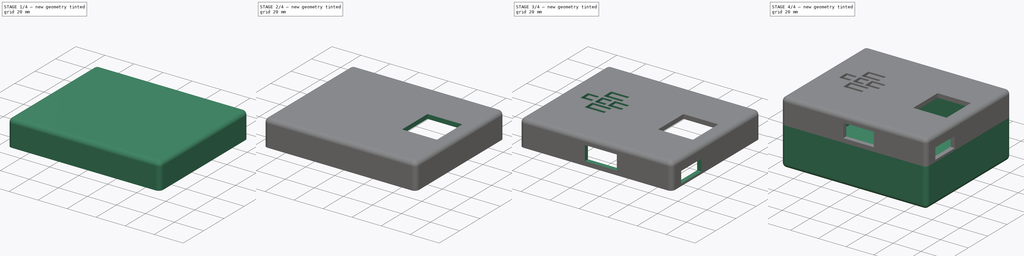
[diagram: build sequence overview — one tinted view per stage of 4, left to right]
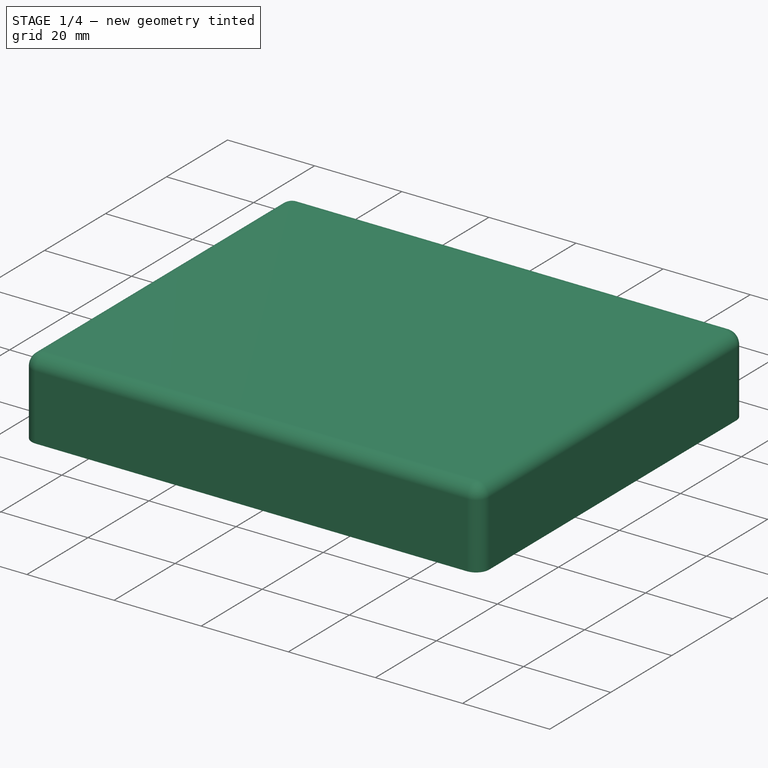
[diagram: stage 1 of 4 — iso view after this stage's code; geometry added in this stage tinted green]
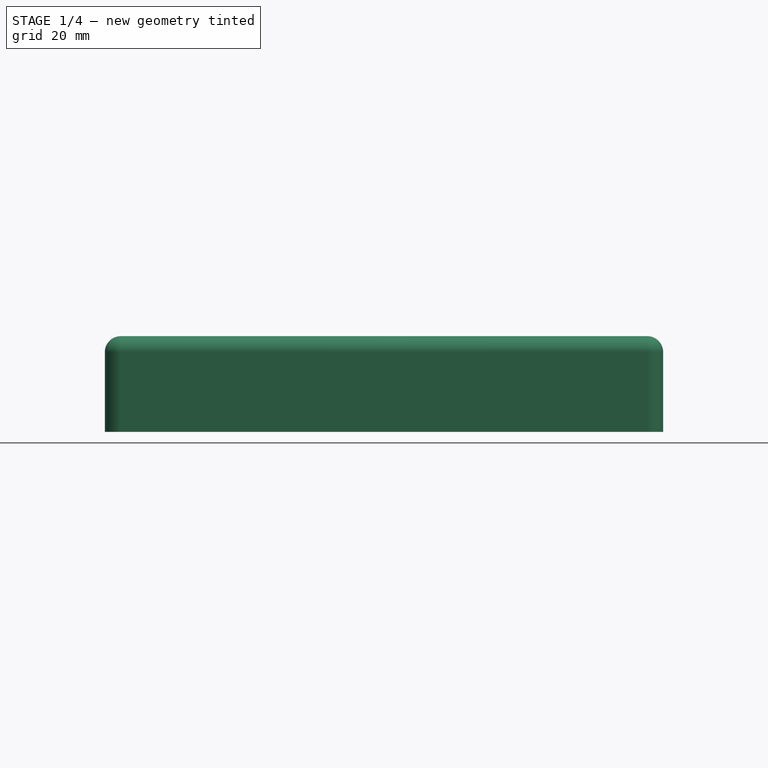
[diagram: stage 1 of 4 — front view after this stage's code; geometry added in this stage tinted green]
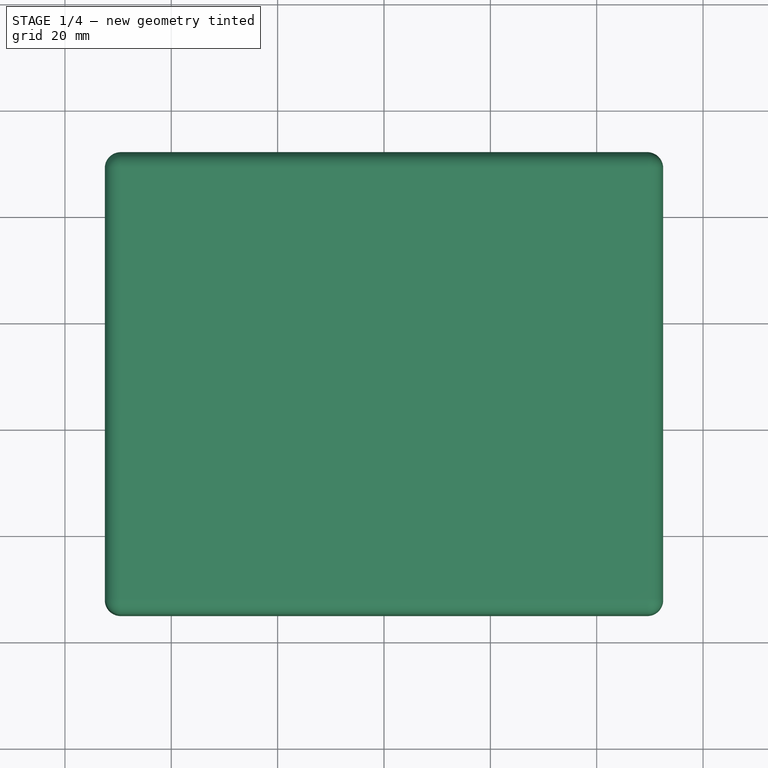
[diagram: stage 1 of 4 — top view after this stage's code; geometry added in this stage tinted green]
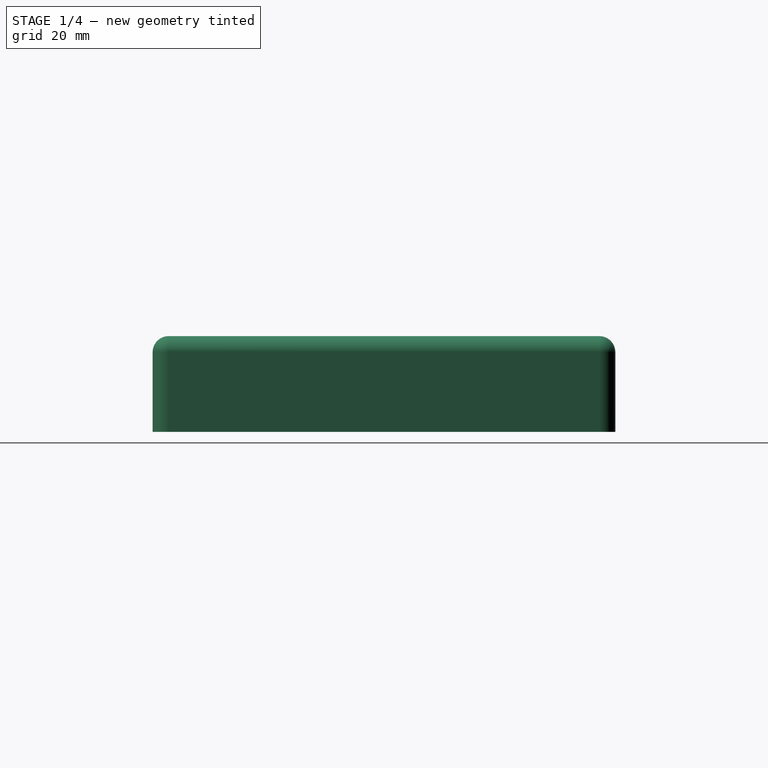
[diagram: stage 1 of 4 — right view after this stage's code; geometry added in this stage tinted green]
FCSTD DOCUMENT  (FreeCAD 1.0R39109 (Git))
Label: Casing_3DPrint
License: All rights reserved
LicenseURL: https://en.wikipedia.org/wiki/All_rights_reserved
objects: Sketcher::SketchObject×11, PartDesign::Pocket×8, PartDesign::Pad×3, PartDesign::Thickness×2, PartDesign::Body×2, Part::Feature×1
note: 64 computed .brp shape members not serialized (recipe doc carries the construction recipe); baked Part::Feature solids carry a one-line shape summary decoded from their .brp

FEATURE [Sketcher::SketchObject] Sketch001
  ArcFitTolerance = 1e-06
  ExternalGeometry = -> [Part__Feature017]
  FullyConstrained = true
  MakeInternals = false
  Placement = pos=(0,0,25) rot=(0,0,1;0rad)
  sketch-geometry (4):
    g0: LineSegment StartX=-29.5 StartY=-51 StartZ=0 EndX=-29.5 EndY=-132 EndZ=0
    g1: LineSegment StartX=-29.5 StartY=-132 StartZ=0 EndX=69.5 EndY=-132 EndZ=0
    g2: LineSegment StartX=69.5 StartY=-132 StartZ=0 EndX=69.5 EndY=-51 EndZ=0
    g3: LineSegment StartX=69.5 StartY=-51 StartZ=0 EndX=-29.5 EndY=-51 EndZ=0
  constraints (12):
    c: Coincident(g0,g1)
    c: Coincident(g1,g2)
    c: Coincident(g2,g3)
    c: Coincident(g3,g0)
    c: Vertical(g0)
    c: Vertical(g2)
    c: Horizontal(g1)
    c: Horizontal(g3)
    c: DistanceX(g-4,g1) = 3
    c: DistanceY(g1,g-4) = 3
    c: DistanceX(g0,g-4) = 3
    c: DistanceY(g-3,g2) = 3
FEATURE [PartDesign::Pad] Pad001
  Direction = (0,0,1)
  Length = 15
  Length2 = 10
  Placement = pos=(0,0,25) rot=(0,0,1;0rad)
  Profile = -> Sketch001
  ReferenceAxis = -> Sketch001 [N_Axis]
  Refine = true
  Suppressed = false
  Type = 0
FEATURE [PartDesign::Thickness] Thickness001
  Base = -> Pad001 [Face5]
  BaseFeature = -> Pad001
  Intersection = false
  Join = 0
  Mode = 0
  Refine = true
  SupportTransform = false
  Suppressed = false
  Value = 3
FEATURE [PartDesign::Body] Body
  AllowCompound = false
  Group = -> [Sketch,Pad,Thickness,Sketch004,Pocket]
  Origin = -> Origin
  Tip = -> Pocket
FEATURE [PartDesign::Pocket] Pocket001
  BaseFeature = -> Thickness001
  Direction = (0,0,-1)
  Length = 5
  Length2 = 5
  Profile = -> Sketch003
  ReferenceAxis = -> Sketch003 [N_Axis]
  Refine = true
  Suppressed = false
  Type = 1
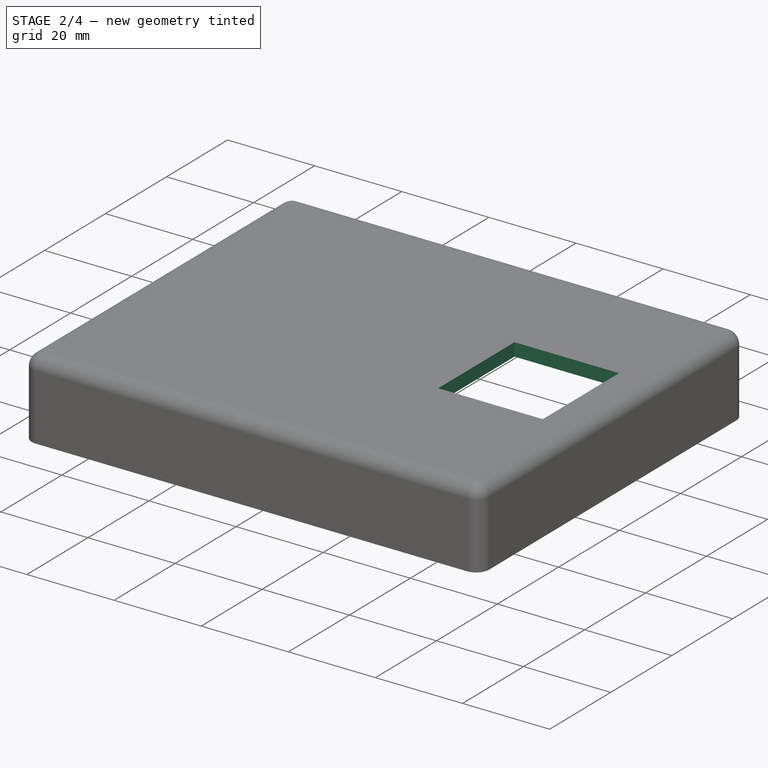
[diagram: stage 2 of 4 — iso view after this stage's code; geometry added in this stage tinted green]
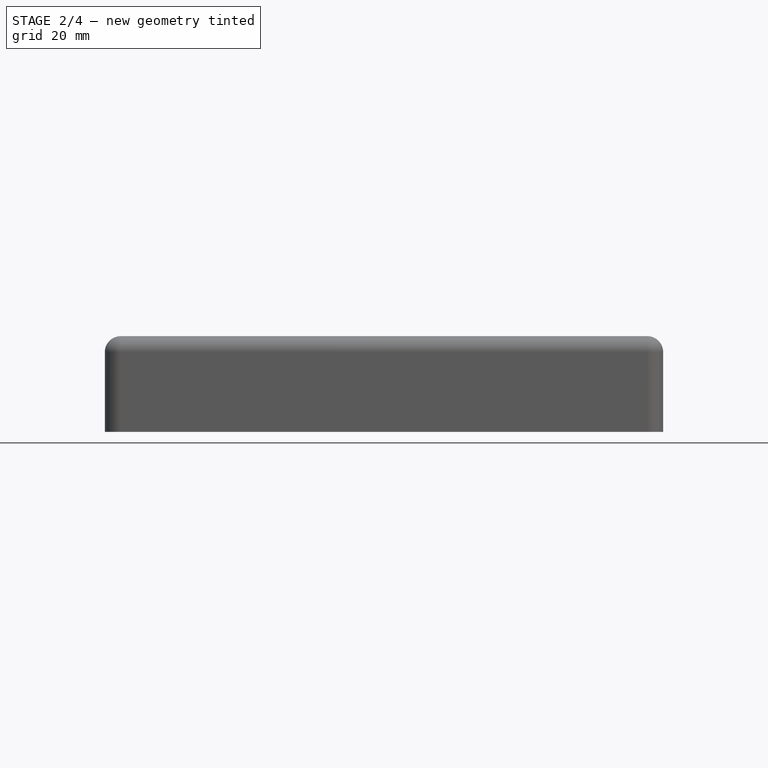
[diagram: stage 2 of 4 — front view after this stage's code; geometry added in this stage tinted green]
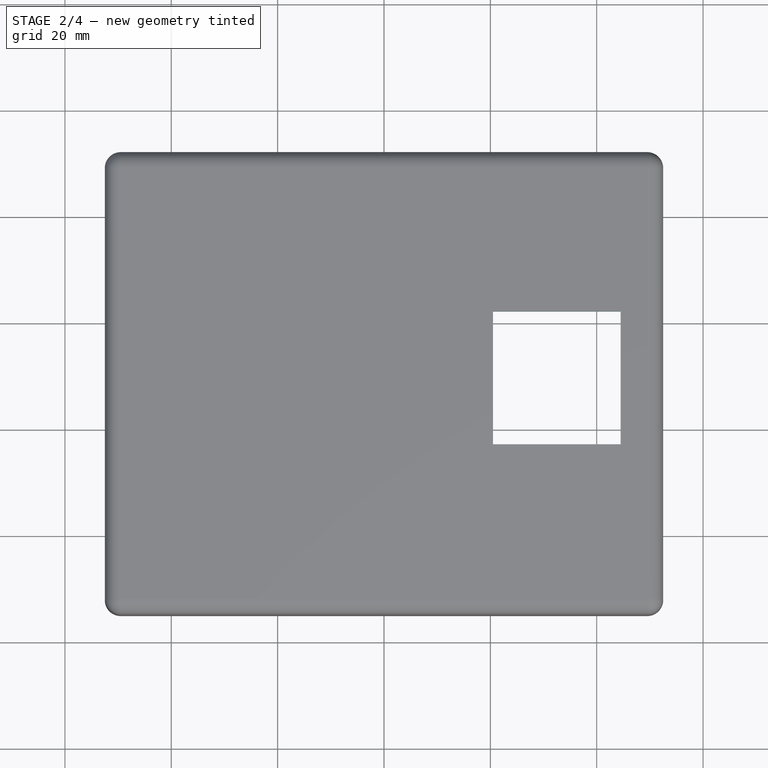
[diagram: stage 2 of 4 — top view after this stage's code; geometry added in this stage tinted green]
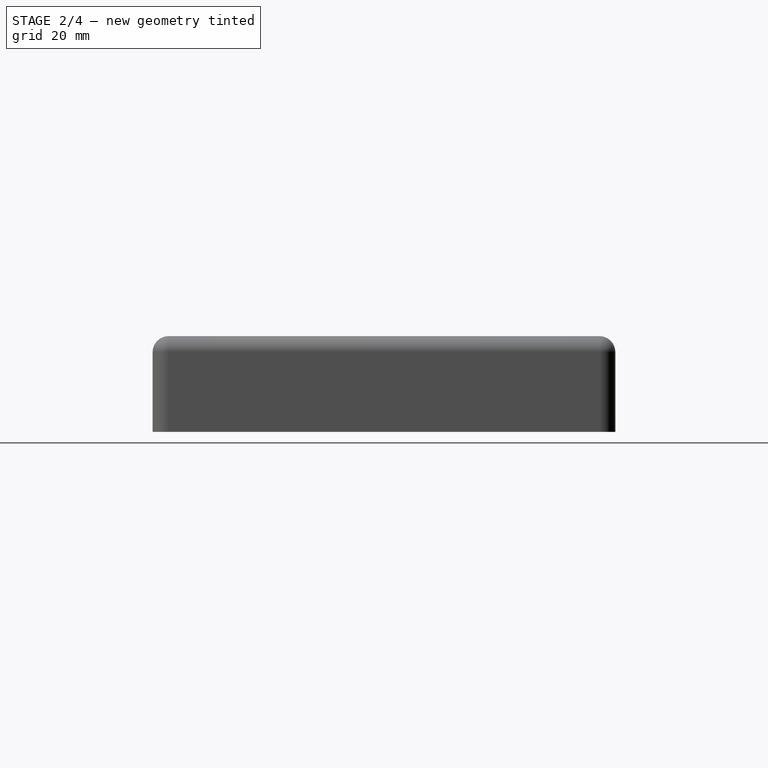
[diagram: stage 2 of 4 — right view after this stage's code; geometry added in this stage tinted green]
FEATURE [Sketcher::SketchObject] Sketch005
  ArcFitTolerance = 1e-06
  AttachmentSupport = -> [Pocket001]
  ExternalGeometry = -> [Pocket001]
  FullyConstrained = true
  MakeInternals = false
  MapMode = 5
  Placement = pos=(0,0,43) rot=(0,0,1;0rad)
  sketch-geometry (4):
    g0: LineSegment StartX=40.5 StartY=-78 StartZ=0 EndX=40.5 EndY=-103 EndZ=0
    g1: LineSegment StartX=40.5 StartY=-103 StartZ=0 EndX=64.5 EndY=-103 EndZ=0
    g2: LineSegment StartX=64.5 StartY=-103 StartZ=0 EndX=64.5 EndY=-78 EndZ=0
    g3: LineSegment StartX=64.5 StartY=-78 StartZ=0 EndX=40.5 EndY=-78 EndZ=0
  constraints (12):
    c: Coincident(g0,g1)
    c: Coincident(g1,g2)
    c: Coincident(g2,g3)
    c: Coincident(g3,g0)
    c: Vertical(g0)
    c: Vertical(g2)
    c: Horizontal(g1)
    c: Horizontal(g3)
    c: DistanceY(g2,g-3) = 27
    c: DistanceY(g1,g2) = 25
    c: DistanceX(g2,g-3) = 5
    c: DistanceX(g0,g2) = 24
FEATURE [PartDesign::Pocket] Pocket002
  BaseFeature = -> Pocket001
  Direction = (0,0,-1)
  Length = 5
  Length2 = 5
  Profile = -> Sketch005
  ReferenceAxis = -> Sketch005 [N_Axis]
  Refine = true
  Suppressed = false
  Type = 1
FEATURE [Sketcher::SketchObject] Sketch006
  ArcFitTolerance = 1e-06
  AttachmentSupport = -> [Pocket002]
  ExternalGeometry = -> [Pocket002]
  FullyConstrained = true
  MakeInternals = false
  MapMode = 5
  Placement = pos=(-32.5,0,0) rot=(0.57735,-0.57735,-0.57735;2.0944rad)
  sketch-geometry (4):
    g0: LineSegment StartX=90 StartY=34 StartZ=0 EndX=90 EndY=26 EndZ=0
    g1: LineSegment StartX=90 StartY=26 StartZ=0 EndX=105 EndY=26 EndZ=0
    g2: LineSegment StartX=105 StartY=26 StartZ=0 EndX=105 EndY=34 EndZ=0
    g3: LineSegment StartX=105 StartY=34 StartZ=0 EndX=90 EndY=34 EndZ=0
  constraints (13):
    c: Coincident(g0,g1)
    c: Coincident(g1,g2)
    c: Coincident(g2,g3)
    c: Coincident(g3,g0)
    c: Vertical(g0)
    c: Vertical(g2)
    c: Horizontal(g1)
    c: Horizontal(g3)
    c: DistanceX(g2,g-3) = 27
    c: DistanceX(g3,g3) = 15
    c: DistanceY(g-3,g-3) = 0
    c: DistanceY(g2,g-3) = 6
    c: DistanceY(g2,g2) = 8
FEATURE [PartDesign::Pocket] Pocket003
  BaseFeature = -> Pocket002
  Direction = (1,0,0)
  Length = 5
  Length2 = 5
  Profile = -> Sketch006
  ReferenceAxis = -> Sketch006 [N_Axis]
  Refine = true
  Suppressed = false
  Type = 2
FEATURE [Sketcher::SketchObject] Sketch007
  ArcFitTolerance = 1e-06
  AttachmentSupport = -> [Pocket003]
  ExternalGeometry = -> [Pocket003]
  FullyConstrained = true
  MakeInternals = false
  MapMode = 5
  Placement = pos=(0,-48,0) rot=(0,0.707107,0.707107;3.14159rad)
  sketch-geometry (4):
    g0: LineSegment StartX=-2.5 StartY=33 StartZ=0 EndX=-2.5 EndY=26.5 EndZ=0
    g1: LineSegment StartX=-2.5 StartY=26.5 StartZ=0 EndX=14.5 EndY=26.5 EndZ=0
    g2: LineSegment StartX=14.5 StartY=26.5 StartZ=0 EndX=14.5 EndY=33 EndZ=0
    g3: LineSegment StartX=14.5 StartY=33 StartZ=0 EndX=-2.5 EndY=33 EndZ=0
  constraints (12):
    c: Coincident(g0,g1)
    c: Coincident(g1,g2)
    c: Coincident(g2,g3)
    c: Coincident(g3,g0)
    c: Vertical(g0)
    c: Vertical(g2)
    c: Horizontal(g1)
    c: Horizontal(g3)
    c: DistanceY(g2,g-3) = 7
    c: DistanceY(g2,g2) = 6.5
    c: DistanceX(g0,g2) = 17
    c: DistanceX(g2,g-3) = 15
FEATURE [PartDesign::Pocket] Pocket004
  BaseFeature = -> Pocket003
  Direction = (0,-1,2e-16)
  Length = 5
  Length2 = 5
  Profile = -> Sketch007
  ReferenceAxis = -> Sketch007 [N_Axis]
  Refine = true
  Suppressed = false
  Type = 2
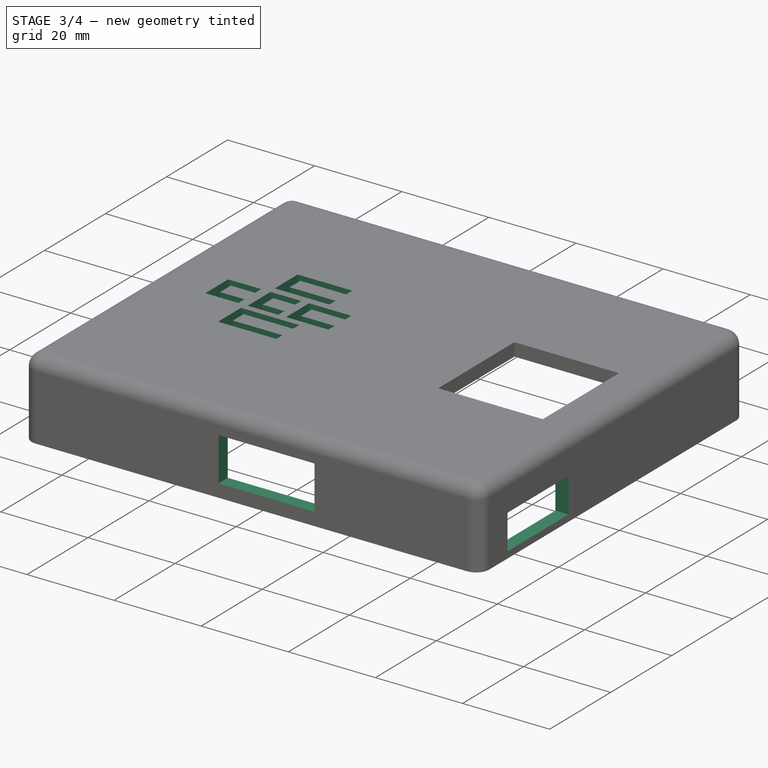
[diagram: stage 3 of 4 — iso view after this stage's code; geometry added in this stage tinted green]
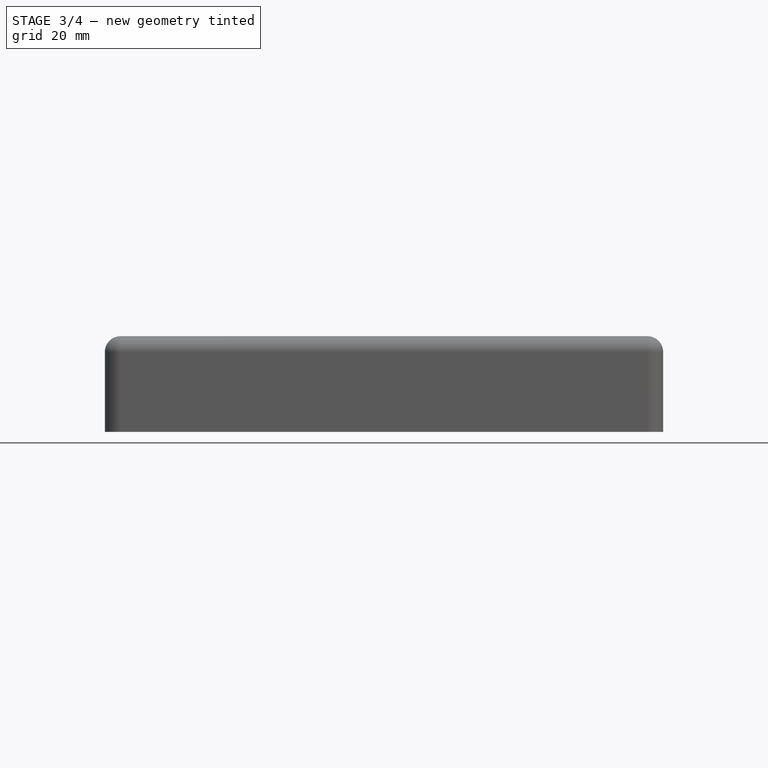
[diagram: stage 3 of 4 — front view after this stage's code; geometry added in this stage tinted green]
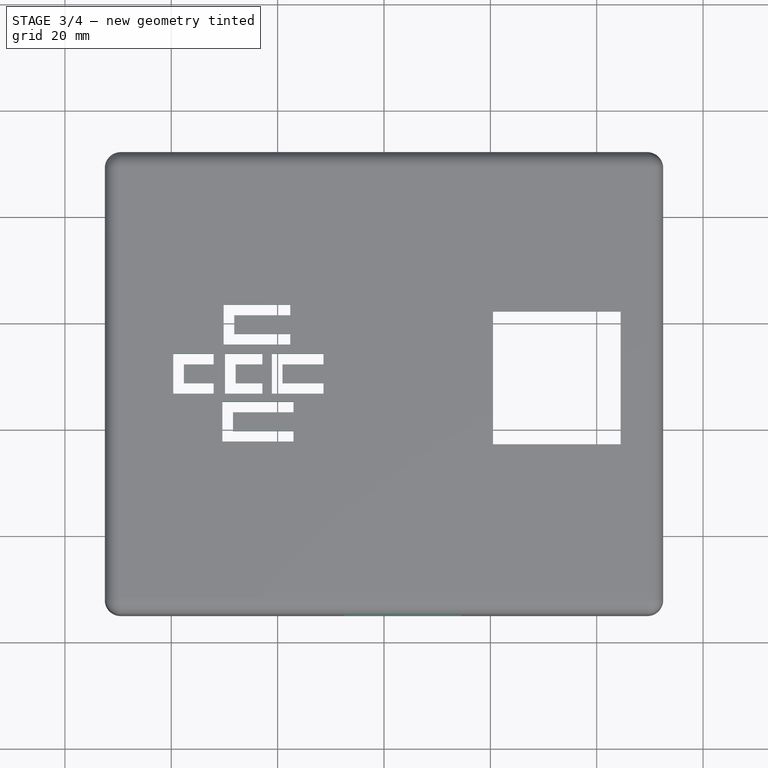
[diagram: stage 3 of 4 — top view after this stage's code; geometry added in this stage tinted green]
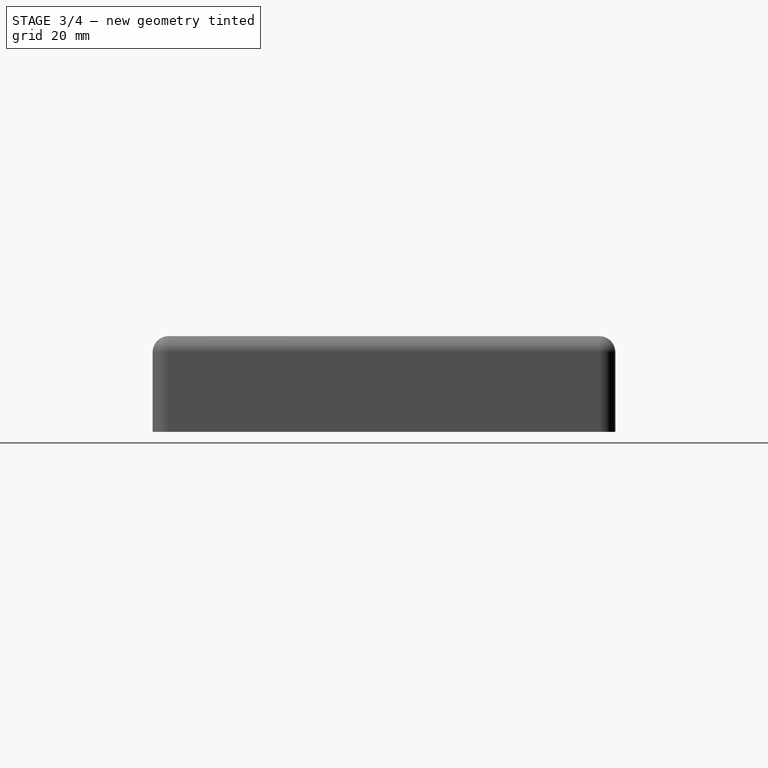
[diagram: stage 3 of 4 — right view after this stage's code; geometry added in this stage tinted green]
FEATURE [Sketcher::SketchObject] Sketch008
  ArcFitTolerance = 1e-06
  AttachmentSupport = -> [Pocket004]
  ExternalGeometry = -> [Pocket004]
  FullyConstrained = true
  MakeInternals = false
  MapMode = 5
  Placement = pos=(72.5,0,0) rot=(0.57735,0.57735,0.57735;2.0944rad)
  sketch-geometry (4):
    g0: LineSegment StartX=-126 StartY=34.5 StartZ=0 EndX=-126 EndY=26.5 EndZ=0
    g1: LineSegment StartX=-126 StartY=26.5 StartZ=0 EndX=-106 EndY=26.5 EndZ=0
    g2: LineSegment StartX=-106 StartY=26.5 StartZ=0 EndX=-106 EndY=34.5 EndZ=0
    g3: LineSegment StartX=-106 StartY=34.5 StartZ=0 EndX=-126 EndY=34.5 EndZ=0
  constraints (12):
    c: Coincident(g0,g1)
    c: Coincident(g1,g2)
    c: Coincident(g2,g3)
    c: Coincident(g3,g0)
    c: Vertical(g0)
    c: Vertical(g2)
    c: Horizontal(g1)
    c: Horizontal(g3)
    c: DistanceY(g0,g-3) = 5.5
    c: DistanceY(g0,g0) = 8
    c: DistanceX(g3,g3) = 20
    c: DistanceX(g-3,g0) = 6
FEATURE [PartDesign::Pocket] Pocket005
  BaseFeature = -> Pocket004
  Direction = (-1,0,0)
  Length = 5
  Length2 = 5
  Profile = -> Sketch008
  ReferenceAxis = -> Sketch008 [N_Axis]
  Refine = true
  Suppressed = false
  Type = 2
FEATURE [Sketcher::SketchObject] Sketch009
  ArcFitTolerance = 1e-06
  AttachmentSupport = -> [Pocket005]
  ExternalGeometry = -> [Pocket005]
  FullyConstrained = true
  MakeInternals = false
  MapMode = 5
  Placement = pos=(0,-135,0) rot=(1,0,0;1.5708rad)
  sketch-geometry (4):
    g0: LineSegment StartX=12.5 StartY=38 StartZ=0 EndX=12.5 EndY=28 EndZ=0
    g1: LineSegment StartX=12.5 StartY=28 StartZ=0 EndX=34.5 EndY=28 EndZ=0
    g2: LineSegment StartX=34.5 StartY=28 StartZ=0 EndX=34.5 EndY=38 EndZ=0
    g3: LineSegment StartX=34.5 StartY=38 StartZ=0 EndX=12.5 EndY=38 EndZ=0
  constraints (12):
    c: Coincident(g0,g1)
    c: Coincident(g1,g2)
    c: Coincident(g2,g3)
    c: Coincident(g3,g0)
    c: Vertical(g0)
    c: Vertical(g2)
    c: Horizontal(g1)
    c: Horizontal(g3)
    c: DistanceY(g2,g-3) = 2
    c: DistanceY(g2,g2) = 10
    c: DistanceX(g1,g1) = 22
    c: DistanceX(g2,g-3) = 35
FEATURE [PartDesign::Pocket] Pocket006
  BaseFeature = -> Pocket005
  Direction = (0,1,-2e-16)
  Length = 5
  Length2 = 5
  Profile = -> Sketch009
  ReferenceAxis = -> Sketch009 [N_Axis]
  Refine = true
  Suppressed = false
  Type = 2
FEATURE [Sketcher::SketchObject] Sketch010
  ArcFitTolerance = 1e-06
  AttachmentSupport = -> [Pocket006]
  FullyConstrained = false
  MakeInternals = false
  MapMode = 5
  Placement = pos=(0,0,43) rot=(0,0,1;0rad)
  sketch-geometry (60):
    g0: LineSegment StartX=-8.15269 StartY=-78.7188 StartZ=0 EndX=-10.1527 EndY=-78.7188 EndZ=0
    g1: LineSegment StartX=-10.1527 StartY=-78.7188 StartZ=0 EndX=-10.1527 EndY=-82.2188 EndZ=0
    g2: LineSegment StartX=-10.1527 StartY=-82.2188 StartZ=0 EndX=-8.15269 EndY=-82.2188 EndZ=0
    g3: LineSegment StartX=-8.15269 StartY=-82.2188 StartZ=0 EndX=-8.15269 EndY=-78.7188 EndZ=0
    g4: LineSegment StartX=2.37578 StartY=-76.7188 StartZ=0 EndX=-10.1527 EndY=-76.7188 EndZ=0
    g5: LineSegment StartX=-10.1527 StartY=-76.7188 StartZ=0 EndX=-10.1527 EndY=-78.7188 EndZ=0
    g6: LineSegment StartX=-10.1527 StartY=-78.7188 StartZ=0 EndX=2.37578 EndY=-78.7188 EndZ=0
    g7: LineSegment StartX=2.37578 StartY=-78.7188 StartZ=0 EndX=2.37578 EndY=-76.7188 EndZ=0
    g8: LineSegment StartX=2.37578 StartY=-82.2188 StartZ=0 EndX=-10.1527 EndY=-82.2188 EndZ=0
    g9: LineSegment StartX=-10.1527 StartY=-82.2188 StartZ=0 EndX=-10.1527 EndY=-84.2188 EndZ=0
    g10: LineSegment StartX=-10.1527 StartY=-84.2188 StartZ=0 EndX=2.37578 EndY=-84.2188 EndZ=0
    g11: LineSegment StartX=2.37578 StartY=-84.2188 StartZ=0 EndX=2.37578 EndY=-82.2188 EndZ=0
    g12: LineSegment StartX=0.912655 StartY=-87.9723 StartZ=0 EndX=-1.08735 EndY=-87.9723 EndZ=0
    g13: LineSegment StartX=-1.08735 StartY=-87.9723 StartZ=0 EndX=-1.08735 EndY=-91.4723 EndZ=0
    g14: LineSegment StartX=-1.08735 StartY=-91.4723 StartZ=0 EndX=0.912655 EndY=-91.4723 EndZ=0
    g15: LineSegment StartX=0.912655 StartY=-91.4723 StartZ=0 EndX=0.912655 EndY=-87.9723 EndZ=0
    g16: LineSegment StartX=8.6177 StartY=-85.9723 StartZ=0 EndX=-1.08735 EndY=-85.9723 EndZ=0
    g17: LineSegment StartX=-1.08735 StartY=-85.9723 StartZ=0 EndX=-1.08735 EndY=-87.9723 EndZ=0
    g18: LineSegment StartX=-1.08735 StartY=-87.9723 StartZ=0 EndX=8.6177 EndY=-87.9723 EndZ=0
    g19: LineSegment StartX=8.6177 StartY=-87.9723 StartZ=0 EndX=8.6177 EndY=-85.9723 EndZ=0
    g20: LineSegment StartX=8.6177 StartY=-91.4723 StartZ=0 EndX=-1.08735 EndY=-91.4723 EndZ=0
    g21: LineSegment StartX=-1.08735 StartY=-91.4723 StartZ=0 EndX=-1.08735 EndY=-93.4723 EndZ=0
    g22: LineSegment StartX=-1.08735 StartY=-93.4723 StartZ=0 EndX=8.6177 EndY=-93.4723 EndZ=0
    g23: LineSegment StartX=8.6177 StartY=-93.4723 StartZ=0 EndX=8.6177 EndY=-91.4723 EndZ=0
    g24: LineSegment StartX=-7.90049 StartY=-87.9723 StartZ=0 EndX=-9.90049 EndY=-87.9723 EndZ=0
    g25: LineSegment StartX=-9.90049 StartY=-87.9723 StartZ=0 EndX=-9.90049 EndY=-91.4723 EndZ=0
    g26: LineSegment StartX=-9.90049 StartY=-91.4723 StartZ=0 EndX=-7.90049 EndY=-91.4723 EndZ=0
    g27: LineSegment StartX=-7.90049 StartY=-91.4723 StartZ=0 EndX=-7.90049 EndY=-87.9723 EndZ=0
    g28: LineSegment StartX=-2.88131 StartY=-85.9723 StartZ=0 EndX=-9.90049 EndY=-85.9723 EndZ=0
    g29: LineSegment StartX=-9.90049 StartY=-85.9723 StartZ=0 EndX=-9.90049 EndY=-87.9723 EndZ=0
    g30: LineSegment StartX=-9.90049 StartY=-87.9723 StartZ=0 EndX=-2.88131 EndY=-87.9723 EndZ=0
    g31: LineSegment StartX=-2.88131 StartY=-87.9723 StartZ=0 EndX=-2.88131 EndY=-85.9723 EndZ=0
    g32: LineSegment StartX=-2.88131 StartY=-91.4723 StartZ=0 EndX=-9.90049 EndY=-91.4723 EndZ=0
    g33: LineSegment StartX=-9.90049 StartY=-91.4723 StartZ=0 EndX=-9.90049 EndY=-93.4723 EndZ=0
    g34: LineSegment StartX=-9.90049 StartY=-93.4723 StartZ=0 EndX=-2.88131 EndY=-93.4723 EndZ=0
    g35: LineSegment StartX=-2.88131 StartY=-93.4723 StartZ=0 EndX=-2.88131 EndY=-91.4723 EndZ=0
    g36: LineSegment StartX=-8.39221 StartY=-96.9807 StartZ=0 EndX=-10.3922 EndY=-96.9807 EndZ=0
    g37: LineSegment StartX=-10.3922 StartY=-96.9807 StartZ=0 EndX=-10.3922 EndY=-100.481 EndZ=0
    g38: LineSegment StartX=-10.3922 StartY=-100.481 StartZ=0 EndX=-8.39221 EndY=-100.481 EndZ=0
    g39: LineSegment StartX=-8.39221 StartY=-100.481 StartZ=0 EndX=-8.39221 EndY=-96.9807 EndZ=0
    g40: LineSegment StartX=2.97212 StartY=-94.9807 StartZ=0 EndX=-10.3922 EndY=-94.9807 EndZ=0
    g41: LineSegment StartX=-10.3922 StartY=-94.9807 StartZ=0 EndX=-10.3922 EndY=-96.9807 EndZ=0
    g42: LineSegment StartX=-10.3922 StartY=-96.9807 StartZ=0 EndX=2.97212 EndY=-96.9807 EndZ=0
    g43: LineSegment StartX=2.97212 StartY=-96.9807 StartZ=0 EndX=2.97212 EndY=-94.9807 EndZ=0
    g44: LineSegment StartX=2.97212 StartY=-100.481 StartZ=0 EndX=-10.3922 EndY=-100.481 EndZ=0
    g45: LineSegment StartX=-10.3922 StartY=-100.481 StartZ=0 EndX=-10.3922 EndY=-102.481 EndZ=0
    g46: LineSegment StartX=-10.3922 StartY=-102.481 StartZ=0 EndX=2.97212 EndY=-102.481 EndZ=0
    g47: LineSegment StartX=2.97212 StartY=-102.481 StartZ=0 EndX=2.97212 EndY=-100.481 EndZ=0
    g48: LineSegment StartX=-17.6266 StartY=-87.9723 StartZ=0 EndX=-19.6266 EndY=-87.9723 EndZ=0
    g49: LineSegment StartX=-19.6266 StartY=-87.9723 StartZ=0 EndX=-19.6266 EndY=-91.4723 EndZ=0
    g50: LineSegment StartX=-19.6266 StartY=-91.4723 StartZ=0 EndX=-17.6266 EndY=-91.4723 EndZ=0
    g51: LineSegment StartX=-17.6266 StartY=-91.4723 StartZ=0 EndX=-17.6266 EndY=-87.9723 EndZ=0
    g52: LineSegment StartX=-12.0456 StartY=-85.9723 StartZ=0 EndX=-19.6266 EndY=-85.9723 EndZ=0
    g53: LineSegment StartX=-19.6266 StartY=-85.9723 StartZ=0 EndX=-19.6266 EndY=-87.9723 EndZ=0
    g54: LineSegment StartX=-19.6266 StartY=-87.9723 StartZ=0 EndX=-12.0456 EndY=-87.9723 EndZ=0
    g55: LineSegment StartX=-12.0456 StartY=-87.9723 StartZ=0 EndX=-12.0456 EndY=-85.9723 EndZ=0
    g56: LineSegment StartX=-12.0456 StartY=-91.4723 StartZ=0 EndX=-19.6266 EndY=-91.4723 EndZ=0
    g57: LineSegment StartX=-19.6266 StartY=-91.4723 StartZ=0 EndX=-19.6266 EndY=-93.4723 EndZ=0
    g58: LineSegment StartX=-19.6266 StartY=-93.4723 StartZ=0 EndX=-12.0456 EndY=-93.4723 EndZ=0
    g59: LineSegment StartX=-12.0456 StartY=-93.4723 StartZ=0 EndX=-12.0456 EndY=-91.4723 EndZ=0
  constraints (157):
    c: Coincident(g0,g1)
    c: Coincident(g1,g2)
    c: Coincident(g2,g3)
    c: Coincident(g3,g0)
    c: Horizontal(g0)
    c: Horizontal(g2)
    c: Vertical(g1)
    c: Vertical(g3)
    c: Coincident(g4,g5)
    c: Coincident(g5,g6)
    c: Coincident(g6,g7)
    c: Coincident(g7,g4)
    c: Horizontal(g4)
    c: Horizontal(g6)
    c: Vertical(g5)
    c: Vertical(g7)
    c: DistanceY(g6,g4) = 2
    c: Coincident(g8,g9)
    c: Coincident(g9,g10)
    c: Coincident(g10,g11)
    c: Coincident(g11,g8)
    c: Horizontal(g8)
    c: Horizontal(g10)
    c: Vertical(g9)
    c: Vertical(g11)
    c: DistanceY(g10,g8) = 2
    c: Coincident(g0,g5)
    c: DistanceX(g2,g2) = 2
    c: Coincident(g8,g1)
    c: PointOnObject(g10,g7)
    c: Distance(g6,g8) = 3.5
    c: Coincident(g12,g13)
    c: Coincident(g13,g14)
    c: Coincident(g14,g15)
    c: Coincident(g15,g12)
    c: Horizontal(g12)
    c: Horizontal(g14)
    c: Vertical(g13)
    c: Vertical(g15)
    c: Coincident(g16,g17)
    c: Coincident(g17,g18)
    c: Coincident(g18,g19)
    c: Coincident(g19,g16)
    c: Horizontal(g16)
    c: Horizontal(g18)
    c: Vertical(g17)
    c: Vertical(g19)
    c: DistanceY(g18,g16) = 2
    c: Coincident(g20,g21)
    c: Coincident(g21,g22)
    c: Coincident(g22,g23)
    c: Coincident(g23,g20)
    c: Horizontal(g20)
    c: Horizontal(g22)
    c: Vertical(g21)
    c: Vertical(g23)
    c: DistanceY(g22,g20) = 2
    c: Coincident(g12,g17)
    c: DistanceX(g14,g14) = 2
    c: Coincident(g20,g13)
    c: PointOnObject(g22,g19)
    c: Distance(g18,g20) = 3.5
    c: Coincident(g24,g25)
    c: Coincident(g25,g26)
    c: Coincident(g26,g27)
    c: Coincident(g27,g24)
    c: Horizontal(g24)
    c: Horizontal(g26)
    c: Vertical(g25)
    c: Vertical(g27)
    c: Coincident(g28,g29)
    c: Coincident(g29,g30)
    c: Coincident(g30,g31)
    c: Coincident(g31,g28)
    c: Horizontal(g28)
    c: Horizontal(g30)
    c: Vertical(g29)
    c: Vertical(g31)
    c: DistanceY(g30,g28) = 2
    c: Coincident(g32,g33)
    c: Coincident(g33,g34)
    c: Coincident(g34,g35)
    c: Coincident(g35,g32)
    c: Horizontal(g32)
    c: Horizontal(g34)
    c: Vertical(g33)
    c: Vertical(g35)
    c: DistanceY(g34,g32) = 2
    c: Coincident(g24,g29)
    c: DistanceX(g26,g26) = 2
    c: Coincident(g32,g25)
    c: PointOnObject(g34,g31)
    c: Distance(g30,g32) = 3.5
    c: Coincident(g36,g37)
    c: Coincident(g37,g38)
    c: Coincident(g38,g39)
    c: Coincident(g39,g36)
    c: Horizontal(g36)
    c: Horizontal(g38)
    c: Vertical(g37)
    c: Vertical(g39)
    c: Coincident(g40,g41)
    c: Coincident(g41,g42)
    c: Coincident(g42,g43)
    c: Coincident(g43,g40)
    c: Horizontal(g40)
    c: Horizontal(g42)
    c: Vertical(g41)
    c: Vertical(g43)
    c: DistanceY(g42,g40) = 2
    c: Coincident(g44,g45)
    c: Coincident(g45,g46)
    c: Coincident(g46,g47)
    c: Coincident(g47,g44)
    c: Horizontal(g44)
    c: Horizontal(g46)
    c: Vertical(g45)
    c: Vertical(g47)
    c: DistanceY(g46,g44) = 2
    c: Coincident(g36,g41)
    c: DistanceX(g38,g38) = 2
    c: Coincident(g44,g37)
    c: PointOnObject(g46,g43)
    c: Distance(g42,g44) = 3.5
    c: Coincident(g48,g49)
    c: Coincident(g49,g50)
    c: Coincident(g50,g51)
    c: Coincident(g51,g48)
    c: Horizontal(g48)
    c: Horizontal(g50)
    c: Vertical(g49)
    c: Vertical(g51)
    c: Coincident(g52,g53)
    c: Coincident(g53,g54)
    c: Coincident(g54,g55)
    c: Coincident(g55,g52)
    c: Horizontal(g52)
    c: Horizontal(g54)
    c: Vertical(g53)
    c: Vertical(g55)
    c: DistanceY(g54,g52) = 2
    c: Coincident(g56,g57)
    c: Coincident(g57,g58)
    c: Coincident(g58,g59)
    c: Coincident(g59,g56)
    c: Horizontal(g56)
    c: Horizontal(g58)
    c: Vertical(g57)
    c: Vertical(g59)
    c: DistanceY(g58,g56) = 2
    c: Coincident(g48,g53)
    c: DistanceX(g50,g50) = 2
    c: Coincident(g56,g49)
    c: PointOnObject(g58,g55)
    c: Distance(g54,g56) = 3.5
    c: DistanceY(g28,g52) = 0
    c: DistanceY(g16,g28) = 0
FEATURE [PartDesign::Pocket] Pocket007
  BaseFeature = -> Pocket006
  Direction = (0,0,-1)
  Length = 5
  Length2 = 5
  Profile = -> Sketch010
  ReferenceAxis = -> Sketch010 [N_Axis]
  Refine = true
  Suppressed = false
  Type = 2
FEATURE [Sketcher::SketchObject] Sketch011
  ArcFitTolerance = 1e-06
  AttachmentSupport = -> [Pocket007]
  FullyConstrained = false
  MakeInternals = false
  MapMode = 5
  Placement = pos=(0,0,40) rot=(1,0,0;3.14159rad)
  sketch-geometry (5):
    g0: Circle CenterX=-6.59666 CenterY=98.7255 CenterZ=0 NormalX=0 NormalY=0 NormalZ=1 AngleXU=0 Radius=1.5
    g1: Circle CenterX=2.74598 CenterY=89.7871 CenterZ=0 NormalX=0 NormalY=0 NormalZ=1 AngleXU=0 Radius=1.5
    g2: Circle CenterX=-6.27514 CenterY=89.7134 CenterZ=0 NormalX=0 NormalY=0 NormalZ=1 AngleXU=0 Radius=1.5
    g3: Circle CenterX=-6.42242 CenterY=80.3977 CenterZ=0 NormalX=0 NormalY=0 NormalZ=1 AngleXU=0 Radius=1.5
    g4: Circle CenterX=-16.017 CenterY=89.7128 CenterZ=0 NormalX=0 NormalY=0 NormalZ=1 AngleXU=0 Radius=1.5
  constraints (5):
    c: Diameter(g0) = 3
    c: Diameter(g1) = 3
    c: Diameter(g2) = 3
    c: Diameter(g3) = 3
    c: Diameter(g4) = 3
FEATURE [PartDesign::Pad] Pad002
  BaseFeature = -> Pocket007
  Direction = (0,0,-1)
  Length = 7
  Length2 = 10
  Profile = -> Sketch011
  ReferenceAxis = -> Sketch011 [N_Axis]
  Refine = true
  Suppressed = false
  Type = 0
FEATURE [PartDesign::Body] Body001
  AllowCompound = false
  Group = -> [Sketch001,Pad001,Thickness001,Sketch003,Pocket001,Sketch005,Pocket002,Sketch006,Pocket003,Sketch007,Pocket004,Sketch008,Pocket005,Sketch009,Pocket006,Sketch010,Pocket007,Sketch011,Pad002]
  Origin = -> Origin001
  Tip = -> Pad002
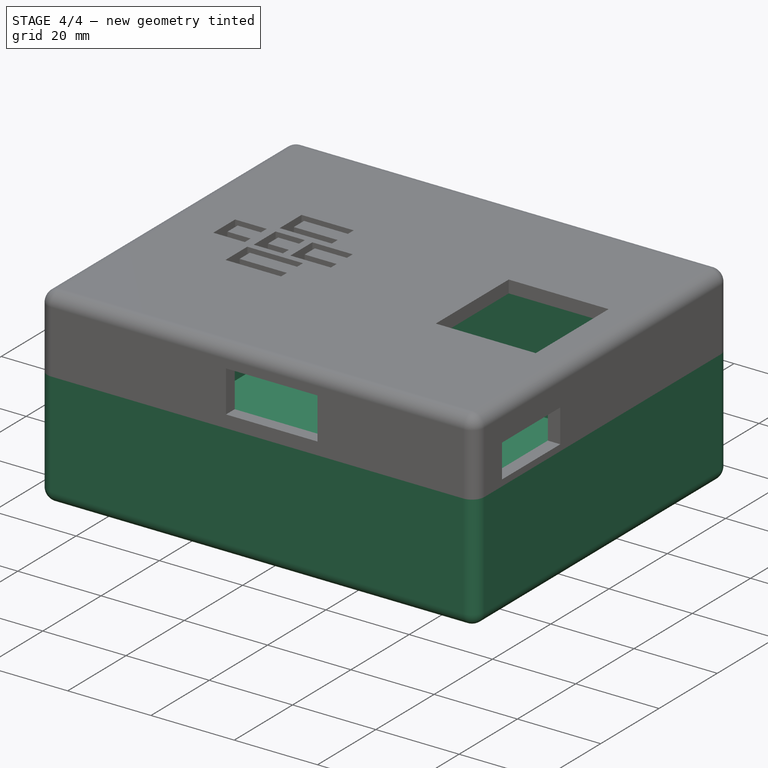
[diagram: stage 4 of 4 — iso view after this stage's code; geometry added in this stage tinted green]
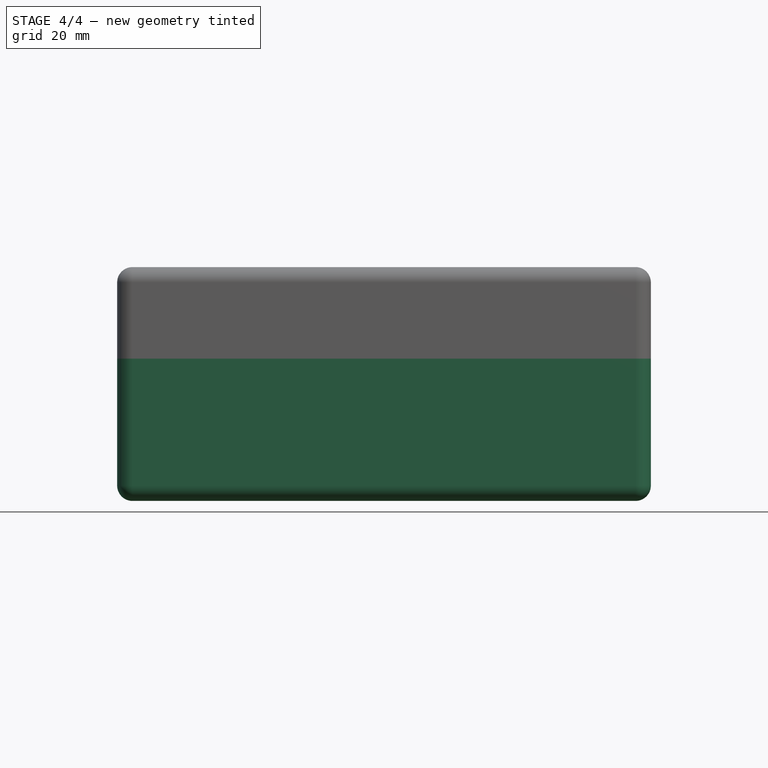
[diagram: stage 4 of 4 — front view after this stage's code; geometry added in this stage tinted green]
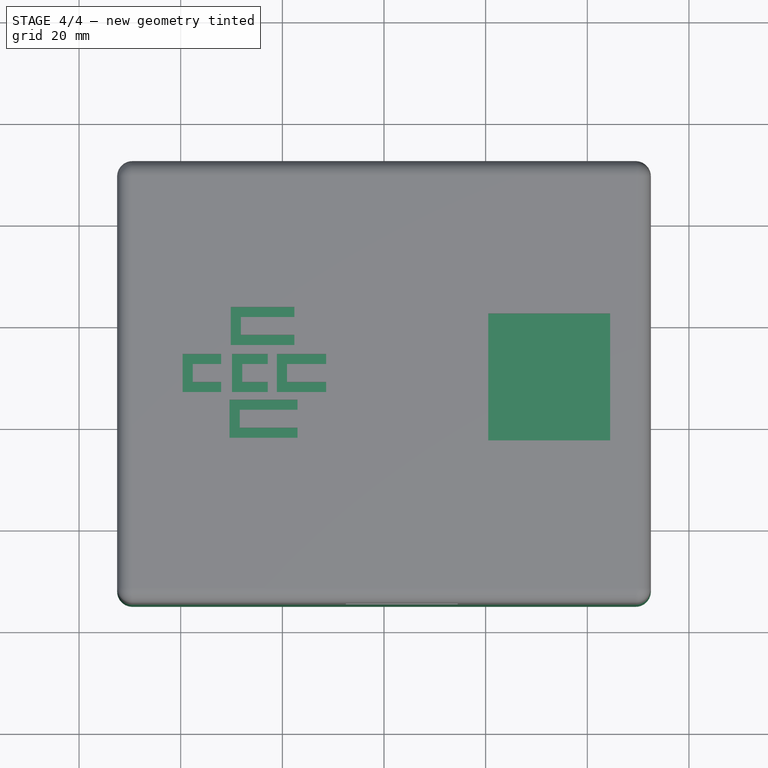
[diagram: stage 4 of 4 — top view after this stage's code; geometry added in this stage tinted green]
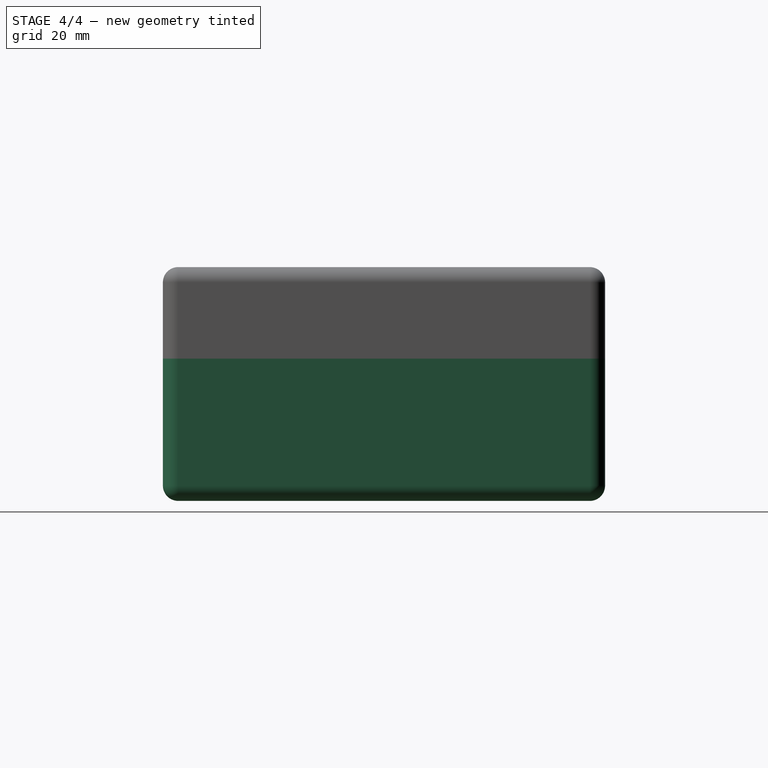
[diagram: stage 4 of 4 — right view after this stage's code; geometry added in this stage tinted green]
FEATURE [Part::Feature] Part__Feature017  label="SignalForgeV4_PCB"
  Placement = pos=(-200,0,37) rot=(0,0,1;0rad)
  shape: bbox 93 x 75 x 1.6 mm, 81 faces (baked)
FEATURE [Sketcher::SketchObject] Sketch
  ArcFitTolerance = 1e-06
  ExternalGeometry = -> [Part__Feature017]
  FullyConstrained = true
  MakeInternals = false
  sketch-geometry (4):
    g0: LineSegment StartX=-29.5 StartY=-51 StartZ=0 EndX=-29.5 EndY=-132 EndZ=0
    g1: LineSegment StartX=-29.5 StartY=-132 StartZ=0 EndX=69.5 EndY=-132 EndZ=0
    g2: LineSegment StartX=69.5 StartY=-132 StartZ=0 EndX=69.5 EndY=-51 EndZ=0
    g3: LineSegment StartX=69.5 StartY=-51 StartZ=0 EndX=-29.5 EndY=-51 EndZ=0
  constraints (12):
    c: Coincident(g0,g1)
    c: Coincident(g1,g2)
    c: Coincident(g2,g3)
    c: Coincident(g3,g0)
    c: Vertical(g0)
    c: Vertical(g2)
    c: Horizontal(g1)
    c: Horizontal(g3)
    c: DistanceX(g-4,g1) = 3
    c: DistanceY(g1,g-4) = 3
    c: DistanceX(g0,g-4) = 3
    c: DistanceY(g-3,g2) = 3
FEATURE [PartDesign::Pad] Pad
  Direction = (0,0,1)
  Length = 25
  Length2 = 10
  Profile = -> Sketch
  ReferenceAxis = -> Sketch [N_Axis]
  Refine = true
  Suppressed = false
  Type = 0
FEATURE [PartDesign::Thickness] Thickness
  Base = -> Pad [Face6]
  BaseFeature = -> Pad
  Intersection = false
  Join = 0
  Mode = 0
  Refine = true
  SupportTransform = false
  Suppressed = false
  Value = 3
FEATURE [Sketcher::SketchObject] Sketch003
  ArcFitTolerance = 1e-06
  AttachmentSupport = -> [Part__Feature017]
  ExternalGeometry = -> [Part__Feature017]
  FullyConstrained = true
  MakeInternals = false
  MapMode = 2
  Placement = pos=(-200,0,37) rot=(0,0,1;0rad)
  sketch-geometry (2):
    g0: Circle CenterX=180 CenterY=-63 CenterZ=0 NormalX=0 NormalY=0 NormalZ=1 AngleXU=0 Radius=1.6
    g1: Circle CenterX=254 CenterY=-124 CenterZ=0 NormalX=0 NormalY=0 NormalZ=1 AngleXU=0 Radius=1.6
  constraints (4):
    c: Coincident(g0,g-3)
    c: Equal(g0,g-3)
    c: Coincident(g1,g-4)
    c: Equal(g1,g-4)
FEATURE [Sketcher::SketchObject] Sketch004
  ArcFitTolerance = 1e-06
  AttachmentSupport = -> [Part__Feature017]
  ExternalGeometry = -> [Part__Feature017]
  FullyConstrained = true
  MakeInternals = false
  MapMode = 2
  Placement = pos=(-200,0,37) rot=(0,0,1;0rad)
  sketch-geometry (2):
    g0: Circle CenterX=180 CenterY=-63 CenterZ=0 NormalX=0 NormalY=0 NormalZ=1 AngleXU=0 Radius=1.6
    g1: Circle CenterX=254 CenterY=-124 CenterZ=0 NormalX=0 NormalY=0 NormalZ=1 AngleXU=0 Radius=1.6
  constraints (4):
    c: Coincident(g0,g-3)
    c: Equal(g0,g-3)
    c: Coincident(g1,g-4)
    c: Equal(g1,g-4)
FEATURE [PartDesign::Pocket] Pocket
  BaseFeature = -> Thickness
  Direction = (0,0,-1)
  Length = 5
  Length2 = 5
  Profile = -> Sketch004
  ReferenceAxis = -> Sketch004 [N_Axis]
  Refine = true
  Suppressed = false
  Type = 1
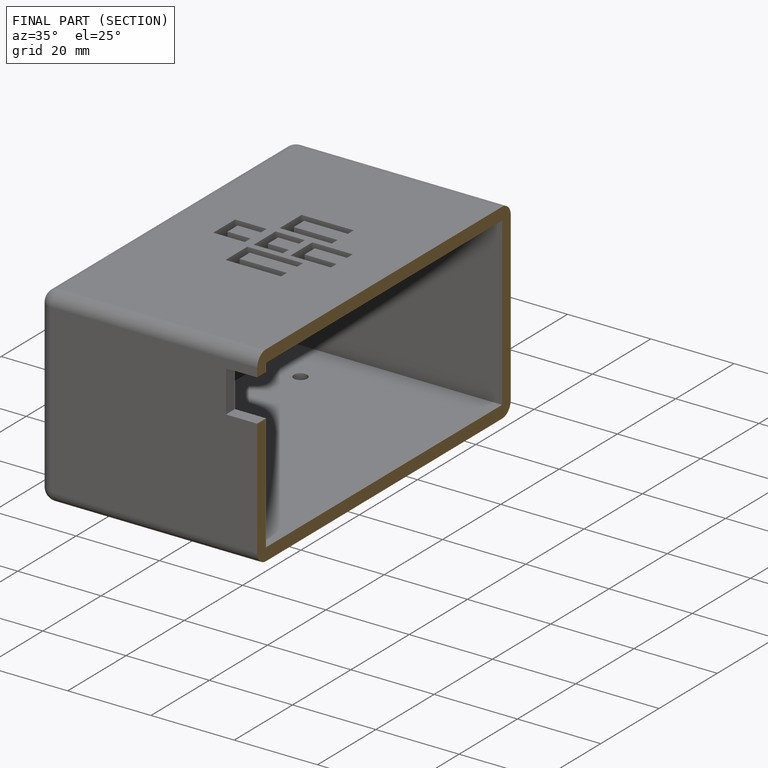
[diagram: finished part — half-section view (interior)]
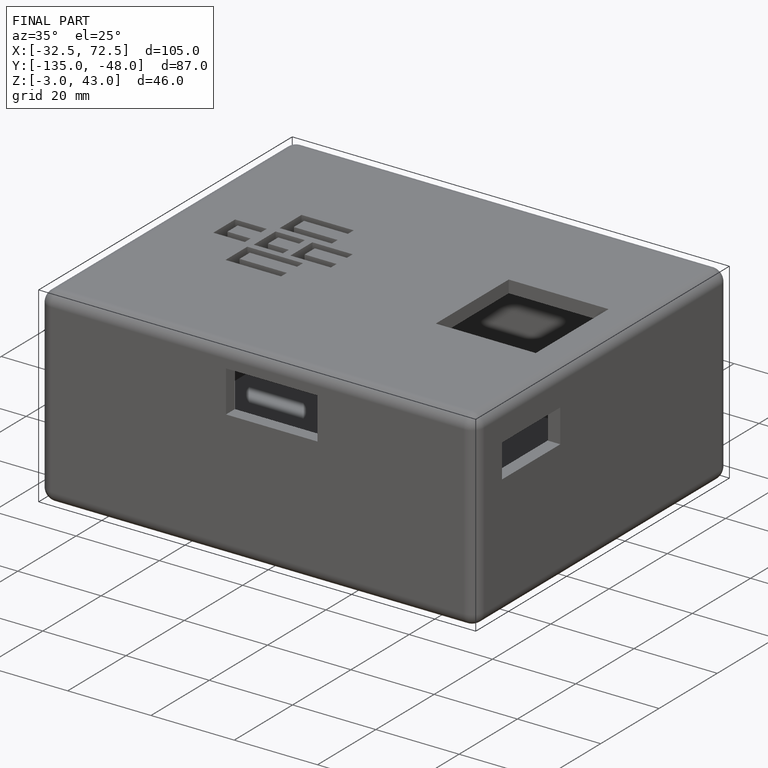
[diagram: finished part — iso view with bounding-box wireframe]
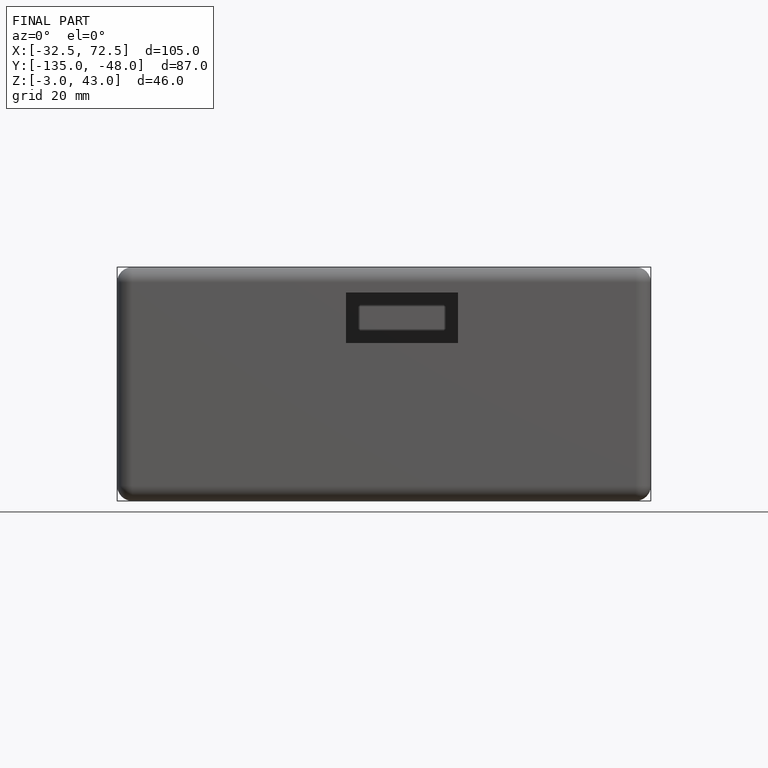
[diagram: finished part — front view with bounding-box wireframe]
